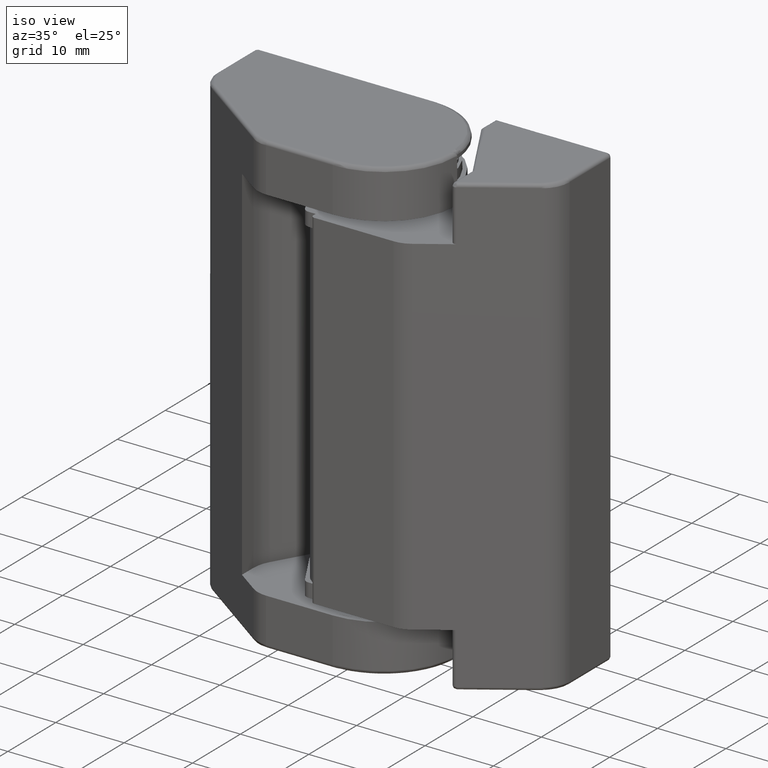
[diagram: clean part render]
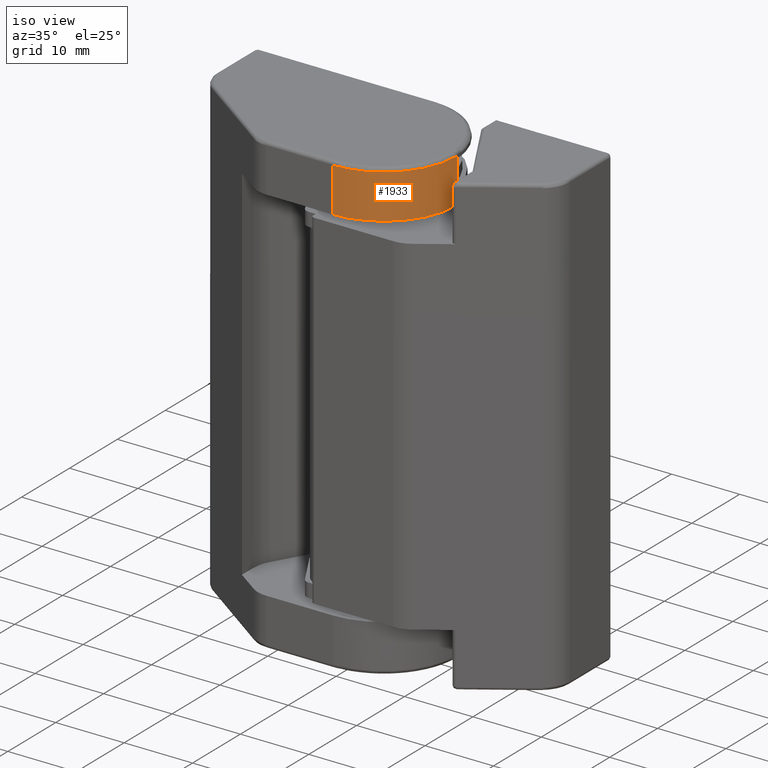
[diagram: same view with one face highlighted and labeled with its STEP entity id]
A machine part, iso view. The second image highlights one B-rep face of the part: STEP entity #1933.
In plain terms, the highlighted face is a freeform B-spline surface patch.
Its self-contained STEP definition (entity closure, byte-faithful):
#1248=CARTESIAN_POINT('',(10.699999999999999,0.0,66.500000000000000));
#1249=VERTEX_POINT('',#1248);
#1343=CARTESIAN_POINT('',(-1.136868E-013,-10.699999999999999,66.500000000000000));
#1344=VERTEX_POINT('',#1343);
#1358=CARTESIAN_POINT('',(10.699999999999889,0.0,66.500000000000000));
#1359=CARTESIAN_POINT('',(10.699999999999886,-10.699999999999999,66.500000000000000));
#1360=CARTESIAN_POINT('',(-1.136868E-013,-10.699999999999999,66.500000000000000));
#1368=(BOUNDED_CURVE()B_SPLINE_CURVE(2,(#1358,#1359,#1360),.UNSPECIFIED.,.F.,.U.)CURVE()GEOMETRIC_REPRESENTATION_ITEM()QUASI_UNIFORM_CURVE()RATIONAL_B_SPLINE_CURVE((1.0,0.707106781186548,1.0))REPRESENTATION_ITEM(''));
#1369=EDGE_CURVE('',#1249,#1344,#1368,.T.);
#1872=CARTESIAN_POINT('',(-1.136868E-013,-10.699999999999999,60.0));
#1873=VERTEX_POINT('',#1872);
#1874=CARTESIAN_POINT('',(-1.136868E-013,-10.699999999999999,66.500000000000000));
#1875=CARTESIAN_POINT('',(-1.136868E-013,-10.699999999999999,60.0));
#1876=QUASI_UNIFORM_CURVE('',1,(#1874,#1875),.UNSPECIFIED.,.F.,.U.);
#1877=EDGE_CURVE('',#1344,#1873,#1876,.T.);
#1895=CARTESIAN_POINT('',(-0.280093346894360,-10.696333377238460,66.662500000000009));
#1896=CARTESIAN_POINT('',(-0.280093346894360,-10.696333377238460,59.833437499999988));
#1897=CARTESIAN_POINT('',(11.502337365935386,-11.004867183779002,66.662499999999994));
#1898=CARTESIAN_POINT('',(11.502337365935386,-11.004867183779002,59.833437499999981));
#1899=CARTESIAN_POINT('',(10.673511929374554,0.752424809198032,66.662500000000009));
#1900=CARTESIAN_POINT('',(10.673511929374554,0.752424809198032,59.833437500000002));
#1908=(BOUNDED_SURFACE()B_SPLINE_SURFACE(1,2,((#1895,#1897,#1899),(#1896,#1898,#1900)),.UNSPECIFIED.,.F.,.F.,.U.)B_SPLINE_SURFACE_WITH_KNOTS((2,2),(3,3),(0.0,6.829062500000022),(0.0,18.951223081745489),.UNSPECIFIED.)GEOMETRIC_REPRESENTATION_ITEM()RATIONAL_B_SPLINE_SURFACE(((1.0,0.670944223154768,0.996392648609106),(1.0,0.670944223154768,0.996392648609106)))REPRESENTATION_ITEM('')SURFACE());
#1909=CARTESIAN_POINT('',(10.699999999999999,0.0,60.0));
#1910=VERTEX_POINT('',#1909);
#1911=CARTESIAN_POINT('',(10.699999999999999,0.0,66.500000000000000));
#1912=CARTESIAN_POINT('',(10.699999999999999,0.0,60.0));
#1913=QUASI_UNIFORM_CURVE('',1,(#1911,#1912),.UNSPECIFIED.,.F.,.U.);
#1914=EDGE_CURVE('',#1249,#1910,#1913,.T.);
#1915=ORIENTED_EDGE('',*,*,#1914,.F.);
#1916=ORIENTED_EDGE('',*,*,#1369,.T.);
#1917=ORIENTED_EDGE('',*,*,#1877,.T.);
#1918=CARTESIAN_POINT('',(10.699999999999889,0.0,60.0));
#1919=CARTESIAN_POINT('',(10.699999999999886,-10.699999999999999,60.0));
#1920=CARTESIAN_POINT('',(-1.136868E-013,-10.699999999999999,60.0));
#1928=(BOUNDED_CURVE()B_SPLINE_CURVE(2,(#1918,#1919,#1920),.UNSPECIFIED.,.F.,.U.)CURVE()GEOMETRIC_REPRESENTATION_ITEM()QUASI_UNIFORM_CURVE()RATIONAL_B_SPLINE_CURVE((1.0,0.707106781186548,1.0))REPRESENTATION_ITEM(''));
#1929=EDGE_CURVE('',#1910,#1873,#1928,.T.);
#1930=ORIENTED_EDGE('',*,*,#1929,.F.);
#1931=EDGE_LOOP('',(#1915,#1916,#1917,#1930));
#1932=FACE_OUTER_BOUND('',#1931,.T.);
#1933=ADVANCED_FACE('',(#1932),#1908,.T.);